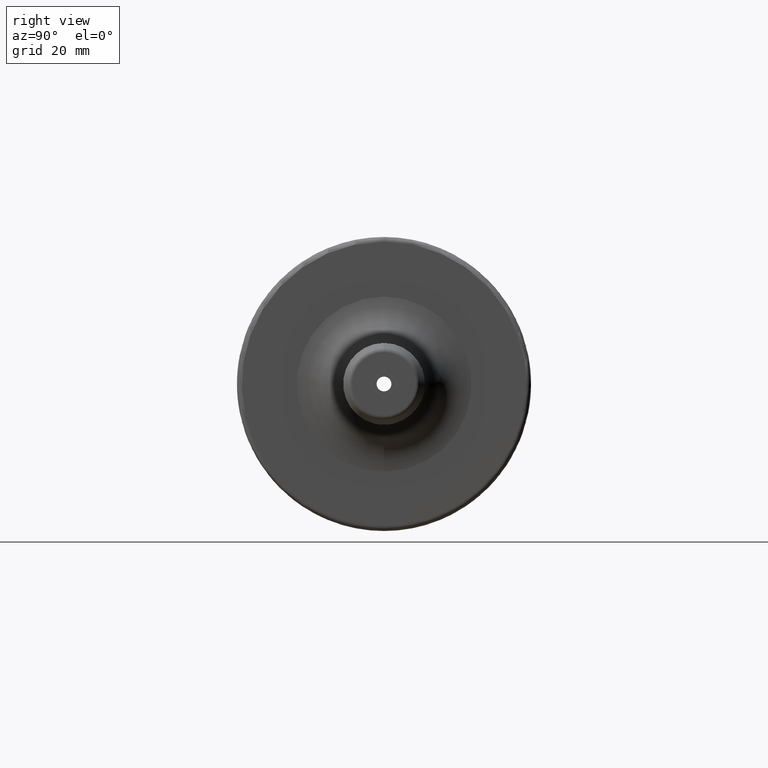
[diagram: clean part render]
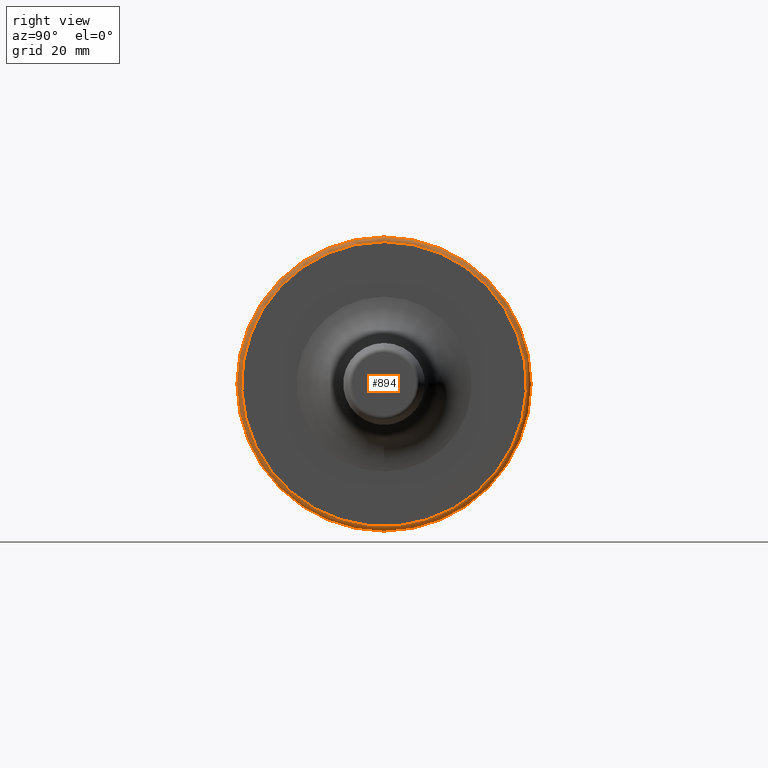
[diagram: same view with one face highlighted and labeled with its STEP entity id]
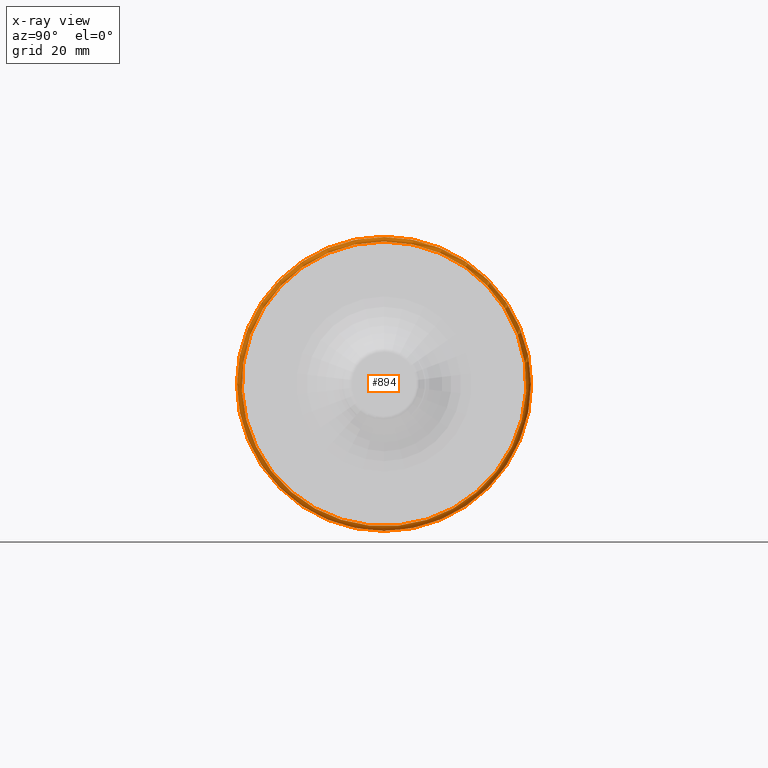
[diagram: x-ray of the same camera — body ghosted, the highlighted face saturated]
A machine part, right view. The second image highlights one B-rep face of the part: STEP entity #894.
The next image is the same camera in x-ray: the body ghosted, the highlighted face saturated — about 0% of this face is hidden behind the body in this view.
In plain terms, the highlighted toroidal blend (fillet) surface has major radius 30.5 mm and minor (blend) radius 1 mm.
Its self-contained STEP definition (entity closure, byte-faithful):
#40=TOROIDAL_SURFACE('',#1019,30.5,1.00000000000001);
#73=CIRCLE('',#944,30.5);
#83=CIRCLE('',#966,31.5);
#86=CIRCLE('',#969,31.5);
#112=CIRCLE('',#1020,1.00000000000001);
#182=FACE_OUTER_BOUND('',#240,.T.);
#240=EDGE_LOOP('',(#820,#821,#822,#823,#824));
#381=VERTEX_POINT('',#1572);
#413=VERTEX_POINT('',#1710);
#414=VERTEX_POINT('',#1711);
#473=EDGE_CURVE('',#381,#381,#73,.T.);
#515=EDGE_CURVE('',#413,#414,#83,.T.);
#520=EDGE_CURVE('',#414,#413,#86,.T.);
#572=EDGE_CURVE('',#381,#414,#112,.T.);
#820=ORIENTED_EDGE('',*,*,#473,.F.);
#821=ORIENTED_EDGE('',*,*,#572,.T.);
#822=ORIENTED_EDGE('',*,*,#520,.T.);
#823=ORIENTED_EDGE('',*,*,#515,.T.);
#824=ORIENTED_EDGE('',*,*,#572,.F.);
#894=ADVANCED_FACE('',(#182),#40,.T.);
#944=AXIS2_PLACEMENT_3D('',#1573,#1080,#1081);
#966=AXIS2_PLACEMENT_3D('',#1712,#1146,#1147);
#969=AXIS2_PLACEMENT_3D('',#1728,#1153,#1154);
#1019=AXIS2_PLACEMENT_3D('',#1874,#1271,#1272);
#1020=AXIS2_PLACEMENT_3D('',#1875,#1273,#1274);
#1080=DIRECTION('center_axis',(1.,0.,0.));
#1081=DIRECTION('ref_axis',(0.,0.,-1.));
#1146=DIRECTION('center_axis',(1.,0.,0.));
#1147=DIRECTION('ref_axis',(0.,0.,-1.));
#1153=DIRECTION('center_axis',(1.,0.,0.));
#1154=DIRECTION('ref_axis',(0.,0.,-1.));
#1271=DIRECTION('center_axis',(1.,0.,0.));
#1272=DIRECTION('ref_axis',(0.,0.,-1.));
#1273=DIRECTION('center_axis',(0.,-1.,-1.22464679914735E-16));
#1274=DIRECTION('ref_axis',(0.,-1.22464679914735E-16,1.));
#1572=CARTESIAN_POINT('',(27.,-3.73517273739943E-15,30.5));
#1573=CARTESIAN_POINT('Origin',(27.,0.,0.));
#1710=CARTESIAN_POINT('',(26.,-31.5,-3.85763741731416E-15));
#1711=CARTESIAN_POINT('',(26.,-3.85763741731416E-15,31.5));
#1712=CARTESIAN_POINT('Origin',(26.,0.,0.));
#1728=CARTESIAN_POINT('Origin',(26.,0.,0.));
#1874=CARTESIAN_POINT('Origin',(26.,0.,0.));
#1875=CARTESIAN_POINT('Origin',(26.,-3.73517273739943E-15,30.5));